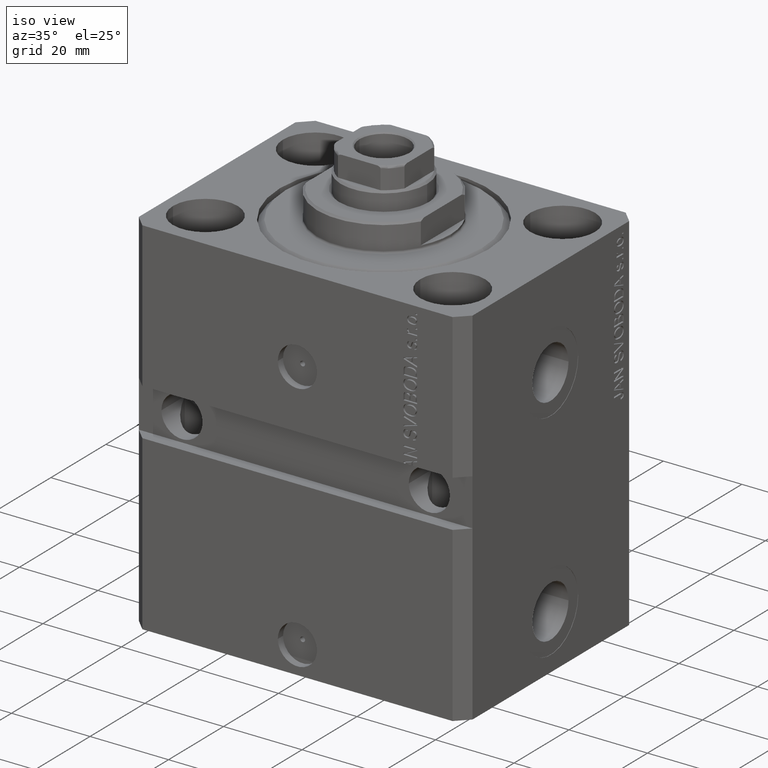
[diagram: clean part render]
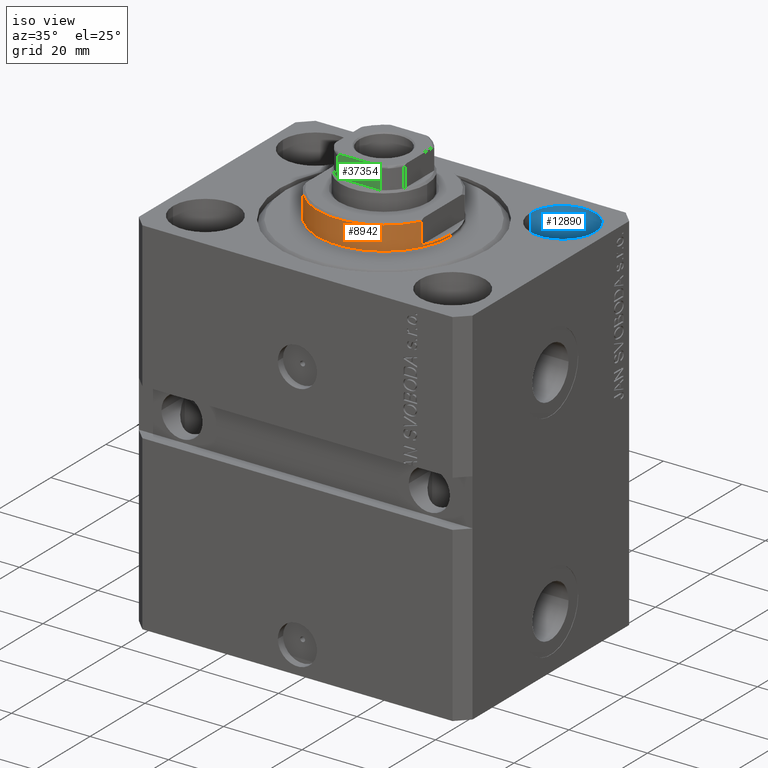
[diagram: same view with three faces highlighted in distinct colors, each labeled with its STEP entity id]
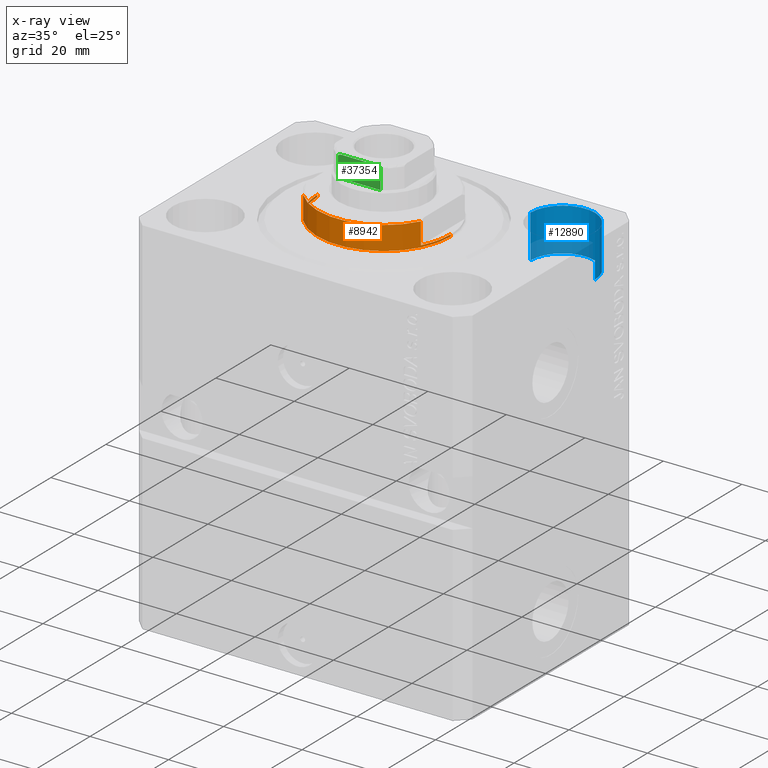
[diagram: x-ray of the same camera — body ghosted, the three highlighted faces saturated]
A machine part, iso view with three faces highlighted in distinct colors.
The next image is the same camera in x-ray (body ghosted, the three faces saturated) — at least one of them is partly hidden behind the body in this view.
Their STEP definitions:

[orange] entity #8942 — the highlighted cylindrical surface (partial cylindrical patch) has radius 17 mm, axis along (0, 0, -1).
#656 = DIRECTION ( 'NONE',  ( -1.000000000000000000, 0.000000000000000000, 0.000000000000000000 ) ) ;
#1083 = ORIENTED_EDGE ( 'NONE', *, *, #43395, .T. ) ;
#1705 = CIRCLE ( 'NONE', #9024, 17.00000000000000000 ) ;
#2388 = AXIS2_PLACEMENT_3D ( 'NONE', #17692, #34221, #38779 ) ;
#3077 = EDGE_CURVE ( 'NONE', #18273, #14995, #41912, .T. ) ;
#3468 = CARTESIAN_POINT ( 'NONE',  ( -17.00000000000000000, 2.081899558550500280E-15, -7.000000000000000000 ) ) ;
#3838 = CIRCLE ( 'NONE', #43394, 17.00000000000000000 ) ;
#5006 = ORIENTED_EDGE ( 'NONE', *, *, #12059, .F. ) ;
#5543 = VECTOR ( 'NONE', #27347, 1000.000000000000000 ) ;
#7145 = CARTESIAN_POINT ( 'NONE',  ( 17.00000000000000000, 0.000000000000000000, -1.000000000000000000 ) ) ;
#7452 = CARTESIAN_POINT ( 'NONE',  ( -15.00000000000000000, -8.000000000000001776, -7.000000000000000000 ) ) ;
#8136 = CARTESIAN_POINT ( 'NONE',  ( -17.00000000000000000, 2.081899558550500280E-15, -0.4999999999999995559 ) ) ;
#8942 = ADVANCED_FACE ( 'NONE', ( #23308 ), #23749, .T. ) ;
#9024 = AXIS2_PLACEMENT_3D ( 'NONE', #40824, #27479, #13090 ) ;
#9431 = VERTEX_POINT ( 'NONE', #45376 ) ;
#9742 = LINE ( 'NONE', #45042, #5543 ) ;
#10020 = ORIENTED_EDGE ( 'NONE', *, *, #3077, .T. ) ;
#10195 = EDGE_CURVE ( 'NONE', #40861, #14995, #20893, .T. ) ;
#11365 = CIRCLE ( 'NONE', #19409, 17.00000000000000000 ) ;
#12059 = EDGE_CURVE ( 'NONE', #38274, #18359, #40858, .T. ) ;
#13090 = DIRECTION ( 'NONE',  ( -1.000000000000000000, 0.000000000000000000, 0.000000000000000000 ) ) ;
#13446 = CARTESIAN_POINT ( 'NONE',  ( 0.000000000000000000, 0.000000000000000000, -7.000000000000000000 ) ) ;
#14021 = DIRECTION ( 'NONE',  ( -0.000000000000000000, -0.000000000000000000, 1.000000000000000000 ) ) ;
#14951 = EDGE_CURVE ( 'NONE', #9431, #19774, #31948, .T. ) ;
#14995 = VERTEX_POINT ( 'NONE', #8136 ) ;
#15539 = DIRECTION ( 'NONE',  ( -1.000000000000000000, 0.000000000000000000, 0.000000000000000000 ) ) ;
#15852 = EDGE_LOOP ( 'NONE', ( #36364, #43669, #16558, #17277, #5006, #44030, #1083, #10020 ) ) ;
#16489 = AXIS2_PLACEMENT_3D ( 'NONE', #13446, #27399, #41407 ) ;
#16558 = ORIENTED_EDGE ( 'NONE', *, *, #14951, .T. ) ;
#16769 = DIRECTION ( 'NONE',  ( 0.000000000000000000, 0.000000000000000000, -1.000000000000000000 ) ) ;
#17277 = ORIENTED_EDGE ( 'NONE', *, *, #27745, .T. ) ;
#17692 = CARTESIAN_POINT ( 'NONE',  ( 0.000000000000000000, 0.000000000000000000, -0.4999999999999995559 ) ) ;
#18009 = VECTOR ( 'NONE', #16769, 1000.000000000000000 ) ;
#18273 = VERTEX_POINT ( 'NONE', #18843 ) ;
#18359 = VERTEX_POINT ( 'NONE', #19452 ) ;
#18843 = CARTESIAN_POINT ( 'NONE',  ( 17.00000000000000000, 0.000000000000000000, -0.4999999999999995559 ) ) ;
#19409 = AXIS2_PLACEMENT_3D ( 'NONE', #39817, #36377, #15539 ) ;
#19452 = CARTESIAN_POINT ( 'NONE',  ( 15.00000000000000000, -8.000000000000001776, -6.500000000000013323 ) ) ;
#19774 = VERTEX_POINT ( 'NONE', #27154 ) ;
#20893 = LINE ( 'NONE', #3468, #30375 ) ;
#23308 = FACE_OUTER_BOUND ( 'NONE', #15852, .T. ) ;
#23749 = CYLINDRICAL_SURFACE ( 'NONE', #16489, 17.00000000000000000 ) ;
#27154 = CARTESIAN_POINT ( 'NONE',  ( -15.00000000000000000, -8.000000000000001776, -6.500000000000014211 ) ) ;
#27347 = DIRECTION ( 'NONE',  ( -0.000000000000000000, -0.000000000000000000, 1.000000000000000000 ) ) ;
#27399 = DIRECTION ( 'NONE',  ( -0.000000000000000000, -0.000000000000000000, 1.000000000000000000 ) ) ;
#27479 = DIRECTION ( 'NONE',  ( 0.000000000000000000, 0.000000000000000000, -1.000000000000000000 ) ) ;
#27745 = EDGE_CURVE ( 'NONE', #19774, #18359, #3838, .T. ) ;
#29906 = CARTESIAN_POINT ( 'NONE',  ( 14.99999999999999645, -8.000000000000003553, -1.000000000000000000 ) ) ;
#30375 = VECTOR ( 'NONE', #14021, 1000.000000000000000 ) ;
#31948 = LINE ( 'NONE', #7452, #33466 ) ;
#33416 = EDGE_CURVE ( 'NONE', #9431, #40861, #1705, .T. ) ;
#33466 = VECTOR ( 'NONE', #42067, 1000.000000000000000 ) ;
#34193 = CARTESIAN_POINT ( 'NONE',  ( 15.00000000000000000, -8.000000000000001776, -7.000000000000000000 ) ) ;
#34221 = DIRECTION ( 'NONE',  ( -0.000000000000000000, -0.000000000000000000, -1.000000000000000000 ) ) ;
#36364 = ORIENTED_EDGE ( 'NONE', *, *, #10195, .F. ) ;
#36377 = DIRECTION ( 'NONE',  ( 0.000000000000000000, 0.000000000000000000, -1.000000000000000000 ) ) ;
#36977 = DIRECTION ( 'NONE',  ( 0.000000000000000000, 0.000000000000000000, 1.000000000000000000 ) ) ;
#36984 = EDGE_CURVE ( 'NONE', #37532, #38274, #11365, .T. ) ;
#37532 = VERTEX_POINT ( 'NONE', #7145 ) ;
#38274 = VERTEX_POINT ( 'NONE', #29906 ) ;
#38779 = DIRECTION ( 'NONE',  ( 1.000000000000000000, 0.000000000000000000, 0.000000000000000000 ) ) ;
#39817 = CARTESIAN_POINT ( 'NONE',  ( 0.000000000000000000, 0.000000000000000000, -1.000000000000000000 ) ) ;
#40360 = CARTESIAN_POINT ( 'NONE',  ( -17.00000000000000000, 2.081899558550500280E-15, -1.000000000000000000 ) ) ;
#40824 = CARTESIAN_POINT ( 'NONE',  ( 0.000000000000000000, 0.000000000000000000, -1.000000000000000000 ) ) ;
#40858 = LINE ( 'NONE', #34193, #18009 ) ;
#40861 = VERTEX_POINT ( 'NONE', #40360 ) ;
#41407 = DIRECTION ( 'NONE',  ( 1.000000000000000000, 0.000000000000000000, 0.000000000000000000 ) ) ;
#41912 = CIRCLE ( 'NONE', #2388, 17.00000000000000000 ) ;
#42067 = DIRECTION ( 'NONE',  ( 0.000000000000000000, 0.000000000000000000, -1.000000000000000000 ) ) ;
#43394 = AXIS2_PLACEMENT_3D ( 'NONE', #44766, #36977, #656 ) ;
#43395 = EDGE_CURVE ( 'NONE', #37532, #18273, #9742, .T. ) ;
#43669 = ORIENTED_EDGE ( 'NONE', *, *, #33416, .F. ) ;
#44030 = ORIENTED_EDGE ( 'NONE', *, *, #36984, .F. ) ;
#44766 = CARTESIAN_POINT ( 'NONE',  ( 0.000000000000000000, 0.000000000000000000, -6.500000000000013323 ) ) ;
#45042 = CARTESIAN_POINT ( 'NONE',  ( 17.00000000000000000, 0.000000000000000000, -7.000000000000000000 ) ) ;
#45376 = CARTESIAN_POINT ( 'NONE',  ( -14.99999999999999645, -8.000000000000003553, -1.000000000000000000 ) ) ;

[blue] entity #12890 — the highlighted cylindrical surface (partial cylindrical patch) has radius 8.25 mm, axis along (0, 0, 1).
#1710 = ORIENTED_EDGE ( 'NONE', *, *, #25154, .T. ) ;
#3944 = CIRCLE ( 'NONE', #27363, 8.249999999999992895 ) ;
#5146 = CARTESIAN_POINT ( 'NONE',  ( 23.25000000000000355, 20.00000000000001066, -11.00000000000000000 ) ) ;
#5597 = ORIENTED_EDGE ( 'NONE', *, *, #17772, .F. ) ;
#6844 = DIRECTION ( 'NONE',  ( 0.000000000000000000, 0.000000000000000000, 1.000000000000000000 ) ) ;
#7519 = CARTESIAN_POINT ( 'NONE',  ( 31.50000000000000000, 20.00000000000001066, -11.00000000000000000 ) ) ;
#8065 = ORIENTED_EDGE ( 'NONE', *, *, #34953, .T. ) ;
#8228 = DIRECTION ( 'NONE',  ( -0.000000000000000000, -0.000000000000000000, 1.000000000000000000 ) ) ;
#8477 = VERTEX_POINT ( 'NONE', #38306 ) ;
#10541 = VERTEX_POINT ( 'NONE', #35717 ) ;
#10772 = CIRCLE ( 'NONE', #14437, 8.249999999999992895 ) ;
#11151 = CARTESIAN_POINT ( 'NONE',  ( 31.50000000000000000, 20.00000000000001066, -11.00000000000000000 ) ) ;
#11173 = VECTOR ( 'NONE', #8228, 1000.000000000000000 ) ;
#11744 = DIRECTION ( 'NONE',  ( 0.000000000000000000, 0.000000000000000000, 1.000000000000000000 ) ) ;
#12890 = ADVANCED_FACE ( 'NONE', ( #43857 ), #35873, .F. ) ;
#13162 = ORIENTED_EDGE ( 'NONE', *, *, #32048, .F. ) ;
#14158 = LINE ( 'NONE', #18033, #24971 ) ;
#14437 = AXIS2_PLACEMENT_3D ( 'NONE', #7519, #6844, #18045 ) ;
#16742 = CARTESIAN_POINT ( 'NONE',  ( 39.74999999999999289, 20.00000000000001066, 0.000000000000000000 ) ) ;
#17772 = EDGE_CURVE ( 'NONE', #8477, #21623, #10772, .T. ) ;
#18033 = CARTESIAN_POINT ( 'NONE',  ( 39.74999999999999289, 20.00000000000001066, -11.00000000000000000 ) ) ;
#18045 = DIRECTION ( 'NONE',  ( 1.000000000000000000, 0.000000000000000000, 0.000000000000000000 ) ) ;
#19444 = LINE ( 'NONE', #43523, #11173 ) ;
#21623 = VERTEX_POINT ( 'NONE', #5146 ) ;
#24823 = VERTEX_POINT ( 'NONE', #16742 ) ;
#24867 = DIRECTION ( 'NONE',  ( -0.000000000000000000, -0.000000000000000000, 1.000000000000000000 ) ) ;
#24971 = VECTOR ( 'NONE', #42349, 1000.000000000000000 ) ;
#25154 = EDGE_CURVE ( 'NONE', #8477, #24823, #14158, .T. ) ;
#27363 = AXIS2_PLACEMENT_3D ( 'NONE', #32570, #11744, #38781 ) ;
#28536 = DIRECTION ( 'NONE',  ( 1.000000000000000000, 0.000000000000000000, 0.000000000000000000 ) ) ;
#32048 = EDGE_CURVE ( 'NONE', #21623, #10541, #19444, .T. ) ;
#32570 = CARTESIAN_POINT ( 'NONE',  ( 31.50000000000000000, 20.00000000000001066, 0.000000000000000000 ) ) ;
#34953 = EDGE_CURVE ( 'NONE', #24823, #10541, #3944, .T. ) ;
#35717 = CARTESIAN_POINT ( 'NONE',  ( 23.25000000000000355, 20.00000000000001066, 0.000000000000000000 ) ) ;
#35873 = CYLINDRICAL_SURFACE ( 'NONE', #45178, 8.249999999999992895 ) ;
#37331 = EDGE_LOOP ( 'NONE', ( #13162, #5597, #1710, #8065 ) ) ;
#38306 = CARTESIAN_POINT ( 'NONE',  ( 39.74999999999999289, 20.00000000000001066, -11.00000000000000000 ) ) ;
#38781 = DIRECTION ( 'NONE',  ( 1.000000000000000000, 0.000000000000000000, 0.000000000000000000 ) ) ;
#42349 = DIRECTION ( 'NONE',  ( -0.000000000000000000, -0.000000000000000000, 1.000000000000000000 ) ) ;
#43523 = CARTESIAN_POINT ( 'NONE',  ( 23.25000000000000355, 20.00000000000001066, -11.00000000000000000 ) ) ;
#43857 = FACE_OUTER_BOUND ( 'NONE', #37331, .T. ) ;
#45178 = AXIS2_PLACEMENT_3D ( 'NONE', #11151, #24867, #28536 ) ;

[green] entity #37354 — the highlighted planar face has unit normal (0, 1, 0).
#603 = CARTESIAN_POINT ( 'NONE',  ( -4.775913644518303691, -9.000000000000000000, 98.57814607430832154 ) ) ;
#1746 = CARTESIAN_POINT ( 'NONE',  ( 4.358898943540671311, -9.000000000000001776, 98.60000000000000853 ) ) ;
#2870 = DIRECTION ( 'NONE',  ( -0.000000000000000000, -0.000000000000000000, 1.000000000000000000 ) ) ;
#3246 = CARTESIAN_POINT ( 'NONE',  ( 5.408326913195988794, -8.999999999999998224, -0.001000000000001000089 ) ) ;
#3286 = CARTESIAN_POINT ( 'NONE',  ( 5.408326913195988794, -8.999999999999998224, 98.09999999999998010 ) ) ;
#5422 = CARTESIAN_POINT ( 'NONE',  ( 5.077896145217222212, -9.000000000000005329, 98.47730167760671804 ) ) ;
#6268 = DIRECTION ( 'NONE',  ( -0.000000000000000000, -0.000000000000000000, 1.000000000000000000 ) ) ;
#7733 = CARTESIAN_POINT ( 'NONE',  ( -4.358898943540671311, -9.000000000000001776, 98.60000000000000853 ) ) ;
#7840 = CARTESIAN_POINT ( 'NONE',  ( 4.358898943540671311, -9.000000000000001776, 98.60000000000000853 ) ) ;
#7927 = VERTEX_POINT ( 'NONE', #3286 ) ;
#8866 = CARTESIAN_POINT ( 'NONE',  ( 5.298186678102073444, -9.000000000000001776, 98.33387812150049001 ) ) ;
#11627 = CARTESIAN_POINT ( 'NONE',  ( -5.297634495023406664, -9.000000000000003553, 98.33442280527800960 ) ) ;
#12078 = CARTESIAN_POINT ( 'NONE',  ( 4.569278586016979560, -9.000000000000003553, 98.60000000000002274 ) ) ;
#12538 = CARTESIAN_POINT ( 'NONE',  ( 5.390954572107313325, -9.000000000000001776, 98.20536285214002703 ) ) ;
#13356 = LINE ( 'NONE', #3246, #28743 ) ;
#13563 = DIRECTION ( 'NONE',  ( 0.000000000000000000, 1.000000000000000000, 0.000000000000000000 ) ) ;
#14835 = CARTESIAN_POINT ( 'NONE',  ( -5.074490744525490982, -9.000000000000005329, 98.47872007843328390 ) ) ;
#15121 = EDGE_CURVE ( 'NONE', #28999, #36916, #25984, .T. ) ;
#16224 = ORIENTED_EDGE ( 'NONE', *, *, #24267, .F. ) ;
#16547 = FACE_OUTER_BOUND ( 'NONE', #34032, .T. ) ;
#17418 = ORIENTED_EDGE ( 'NONE', *, *, #38435, .F. ) ;
#17510 = LINE ( 'NONE', #20951, #17953 ) ;
#17953 = VECTOR ( 'NONE', #41362, 1000.000000000000000 ) ;
#18706 = CARTESIAN_POINT ( 'NONE',  ( -5.335288102212762062, -9.000000000000001776, 98.29569054027619757 ) ) ;
#18887 = CARTESIAN_POINT ( 'NONE',  ( -8.999999999999998224, -9.000000000000001776, 93.10000000000000853 ) ) ;
#19768 = VERTEX_POINT ( 'NONE', #29930 ) ;
#20298 = CARTESIAN_POINT ( 'NONE',  ( -5.408326913195988794, -8.999999999999998224, -0.001000000000001000089 ) ) ;
#20951 = CARTESIAN_POINT ( 'NONE',  ( -8.999999999999998224, -9.000000000000001776, 98.60000000000000853 ) ) ;
#21459 = CARTESIAN_POINT ( 'NONE',  ( -5.408326913195981689, -9.000000000000003553, 98.15374346731884714 ) ) ;
#22131 = CARTESIAN_POINT ( 'NONE',  ( -4.569272810556666009, -9.000000000000001776, 98.59999999999998010 ) ) ;
#23779 = AXIS2_PLACEMENT_3D ( 'NONE', #38084, #13563, #30952 ) ;
#23925 = ORIENTED_EDGE ( 'NONE', *, *, #24045, .T. ) ;
#24045 = EDGE_CURVE ( 'NONE', #19768, #35863, #36452, .T. ) ;
#24127 = EDGE_CURVE ( 'NONE', #7927, #31663, #38088, .T. ) ;
#24267 = EDGE_CURVE ( 'NONE', #28999, #35863, #37728, .T. ) ;
#25984 = LINE ( 'NONE', #18887, #26120 ) ;
#26120 = VECTOR ( 'NONE', #36997, 1000.000000000000000 ) ;
#26938 = CARTESIAN_POINT ( 'NONE',  ( 5.408326913195989682, -8.999999999999998224, 98.15357207273351037 ) ) ;
#27800 = ORIENTED_EDGE ( 'NONE', *, *, #24127, .T. ) ;
#27831 = CARTESIAN_POINT ( 'NONE',  ( -5.408326913195988794, -8.999999999999998224, 98.09999999999998010 ) ) ;
#28743 = VECTOR ( 'NONE', #6268, 1000.000000000000000 ) ;
#28783 = CARTESIAN_POINT ( 'NONE',  ( -5.390945448132529627, -9.000000000000003553, 98.20548165389703854 ) ) ;
#28999 = VERTEX_POINT ( 'NONE', #36003 ) ;
#29930 = CARTESIAN_POINT ( 'NONE',  ( -4.358898943540671311, -9.000000000000001776, 98.60000000000000853 ) ) ;
#30151 = CARTESIAN_POINT ( 'NONE',  ( 5.408326913195988794, -8.999999999999998224, 98.09999999999998010 ) ) ;
#30284 = PLANE ( 'NONE',  #23779 ) ;
#30952 = DIRECTION ( 'NONE',  ( 0.000000000000000000, -0.000000000000000000, 1.000000000000000000 ) ) ;
#31565 = CARTESIAN_POINT ( 'NONE',  ( 5.408326913195988794, -8.999999999999998224, 93.10000000000002274 ) ) ;
#31663 = VERTEX_POINT ( 'NONE', #7840 ) ;
#32269 = VECTOR ( 'NONE', #2870, 1000.000000000000000 ) ;
#32673 = CARTESIAN_POINT ( 'NONE',  ( -5.408326913195988794, -8.999999999999998224, 98.09999999999998010 ) ) ;
#32996 = EDGE_CURVE ( 'NONE', #36916, #7927, #13356, .T. ) ;
#33606 = CARTESIAN_POINT ( 'NONE',  ( 5.335664150027709773, -9.000000000000003553, 98.29518433800130595 ) ) ;
#34032 = EDGE_LOOP ( 'NONE', ( #17418, #23925, #16224, #41144, #39553, #27800 ) ) ;
#35863 = VERTEX_POINT ( 'NONE', #27831 ) ;
#36003 = CARTESIAN_POINT ( 'NONE',  ( -5.408326913195988794, -8.999999999999998224, 93.10000000000003695 ) ) ;
#36452 = B_SPLINE_CURVE_WITH_KNOTS ( 'NONE', 3,
 ( #7733, #22131, #603, #14835, #43016, #11627, #18706, #28783, #21459, #32673 ),
 .UNSPECIFIED., .F., .F.,
 ( 4, 2, 2, 2, 4 ),
 ( 0.000000000000000000, 0.0006221106941441185327, 0.0009331660412161778533, 0.001088693714752207459, 0.001244221388288237065 ),
 .UNSPECIFIED. ) ;
#36577 = CARTESIAN_POINT ( 'NONE',  ( 5.174818616237104152, -9.000000000000001776, 98.43252188465331187 ) ) ;
#36916 = VERTEX_POINT ( 'NONE', #31565 ) ;
#36997 = DIRECTION ( 'NONE',  ( 1.000000000000000000, 0.000000000000000000, 0.000000000000000000 ) ) ;
#37354 = ADVANCED_FACE ( 'NONE', ( #16547 ), #30284, .F. ) ;
#37728 = LINE ( 'NONE', #20298, #32269 ) ;
#38084 = CARTESIAN_POINT ( 'NONE',  ( -8.999999999999998224, -9.000000000000001776, 98.60000000000000853 ) ) ;
#38088 = B_SPLINE_CURVE_WITH_KNOTS ( 'NONE', 3,
 ( #30151, #26938, #12538, #33606, #8866, #36577, #5422, #40481, #12078, #1746 ),
 .UNSPECIFIED., .F., .F.,
 ( 4, 2, 2, 2, 4 ),
 ( 2.823925224926892107E-17, 0.0001582447020888494719, 0.0003164894041776707004, 0.0006329788083552850223, 0.001265957616710526893 ),
 .UNSPECIFIED. ) ;
#38435 = EDGE_CURVE ( 'NONE', #19768, #31663, #17510, .T. ) ;
#39553 = ORIENTED_EDGE ( 'NONE', *, *, #32996, .T. ) ;
#40481 = CARTESIAN_POINT ( 'NONE',  ( 4.778533838065905925, -9.000000000000001776, 98.57782914764698035 ) ) ;
#41144 = ORIENTED_EDGE ( 'NONE', *, *, #15121, .T. ) ;
#41362 = DIRECTION ( 'NONE',  ( 1.000000000000000000, 0.000000000000000000, 0.000000000000000000 ) ) ;
#43016 = CARTESIAN_POINT ( 'NONE',  ( -5.173732970196582848, -9.000000000000000000, 98.43318086437983538 ) ) ;